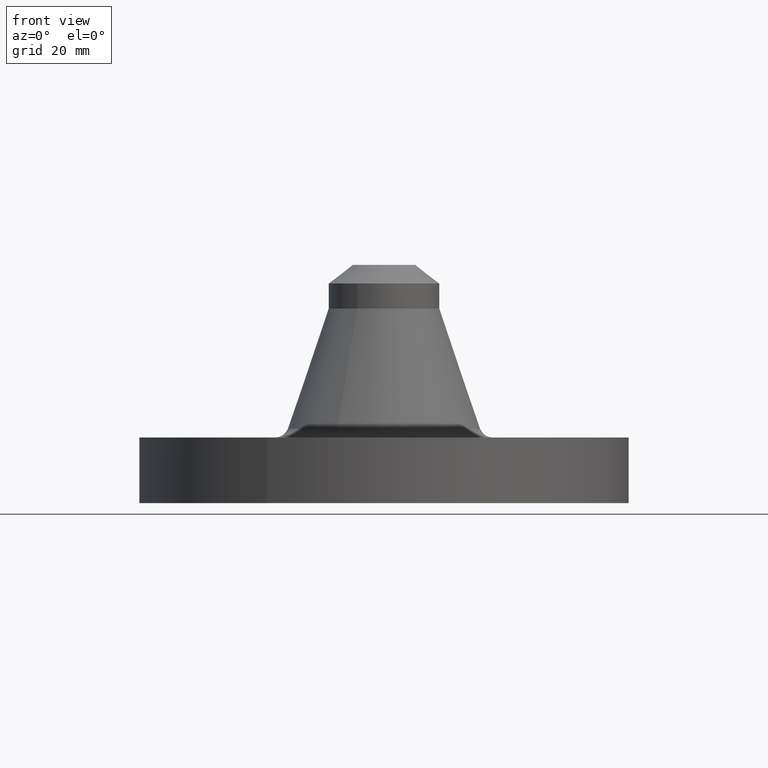
[diagram: clean part render]
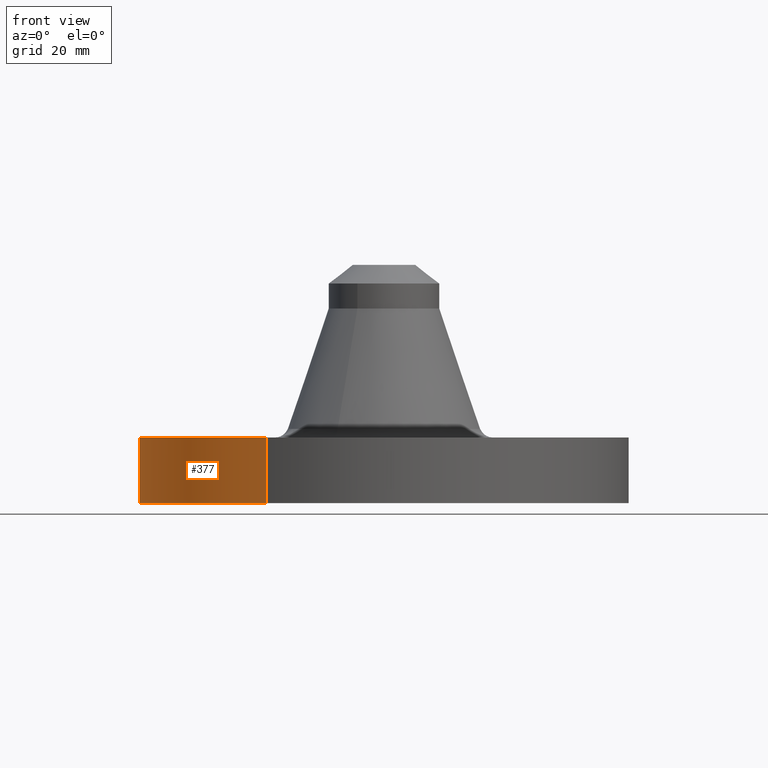
[diagram: same view with one face highlighted and labeled with its STEP entity id]
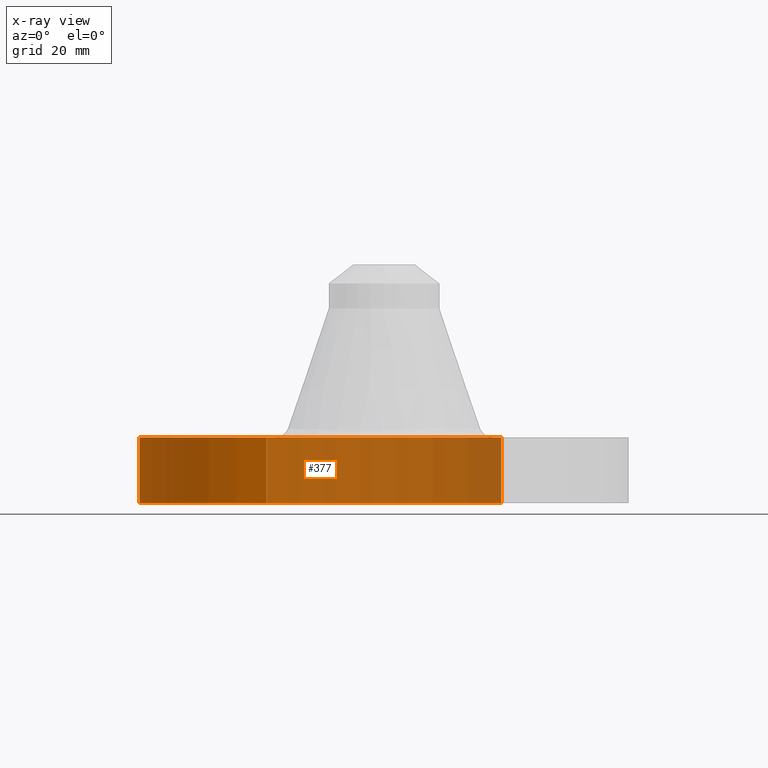
[diagram: x-ray of the same camera — body ghosted, the highlighted face saturated]
A machine part, front view. The second image highlights one B-rep face of the part: STEP entity #377.
The next image is the same camera in x-ray: the body ghosted, the highlighted face saturated — about 65% of this face is hidden behind the body in this view.
In plain terms, the highlighted cylindrical surface (partial cylindrical patch) has radius 58.674 mm, axis along (0, 0, -1).
Its self-contained STEP definition (entity closure, byte-faithful):
#131=AXIS2_PLACEMENT_3D('Circle Axis2P3D',#129,#130,$) ;
#247=AXIS2_PLACEMENT_3D('Circle Axis2P3D',#245,#246,$) ;
#359=AXIS2_PLACEMENT_3D('Cylinder Axis2P3D',#356,#357,#358) ;
#129=CARTESIAN_POINT('Axis2P3D Location',(-5.59482469102E-016,-1.6482633281E-011,0.)) ;
#133=CARTESIAN_POINT('Vertex',(-1.10747299418,-2.02721571797,2.93326867607E-011)) ;
#135=CARTESIAN_POINT('Vertex',(1.10747299418,2.02721571798,2.93326867607E-011)) ;
#240=CARTESIAN_POINT('Vertex',(1.10747299418,2.02721571798,0.620000000016)) ;
#242=CARTESIAN_POINT('Vertex',(-1.10747299418,-2.02721571798,0.620000000016)) ;
#245=CARTESIAN_POINT('Axis2P3D Location',(-5.59482469102E-016,-1.28798459212E-011,0.620000000002)) ;
#356=CARTESIAN_POINT('Axis2P3D Location',(0.,0.,1.125)) ;
#361=CARTESIAN_POINT('Line Origine',(-1.10747299418,-2.02721571798,0.310000000023)) ;
#366=CARTESIAN_POINT('Line Origine',(1.10747299418,2.02721571798,0.310000000023)) ;
#130=DIRECTION('Axis2P3D Direction',(0.,0.,-0.0393700787402)) ;
#246=DIRECTION('Axis2P3D Direction',(0.,0.,-0.0393700787402)) ;
#357=DIRECTION('Axis2P3D Direction',(0.,0.,-0.0393700787402)) ;
#358=DIRECTION('Axis2P3D XDirection',(-0.0188750212049,-0.0345504945626,0.)) ;
#362=DIRECTION('Vector Direction',(0.,0.,-0.0393700787402)) ;
#367=DIRECTION('Vector Direction',(0.,0.,-0.0393700787402)) ;
#363=VECTOR('Line Direction',#362,0.0393700787402) ;
#368=VECTOR('Line Direction',#367,0.0393700787402) ;
#372=ORIENTED_EDGE('',*,*,#137,.F.) ;
#373=ORIENTED_EDGE('',*,*,#365,.T.) ;
#374=ORIENTED_EDGE('',*,*,#249,.T.) ;
#375=ORIENTED_EDGE('',*,*,#370,.F.) ;
#377=ADVANCED_FACE('PartBody',(#376),#360,.T.) ;
#132=CIRCLE('generated circle',#131,2.31000000004) ;
#248=CIRCLE('generated circle',#247,2.31000000004) ;
#360=CYLINDRICAL_SURFACE('generated cylinder',#359,2.31000000001) ;
#137=EDGE_CURVE('',#134,#136,#132,.T.) ;
#249=EDGE_CURVE('',#243,#241,#248,.T.) ;
#365=EDGE_CURVE('',#134,#243,#364,.F.) ;
#370=EDGE_CURVE('',#136,#241,#369,.F.) ;
#371=EDGE_LOOP('',(#372,#373,#374,#375)) ;
#376=FACE_OUTER_BOUND('',#371,.T.) ;
#364=LINE('Line',#361,#363) ;
#369=LINE('Line',#366,#368) ;
#134=VERTEX_POINT('',#133) ;
#136=VERTEX_POINT('',#135) ;
#241=VERTEX_POINT('',#240) ;
#243=VERTEX_POINT('',#242) ;